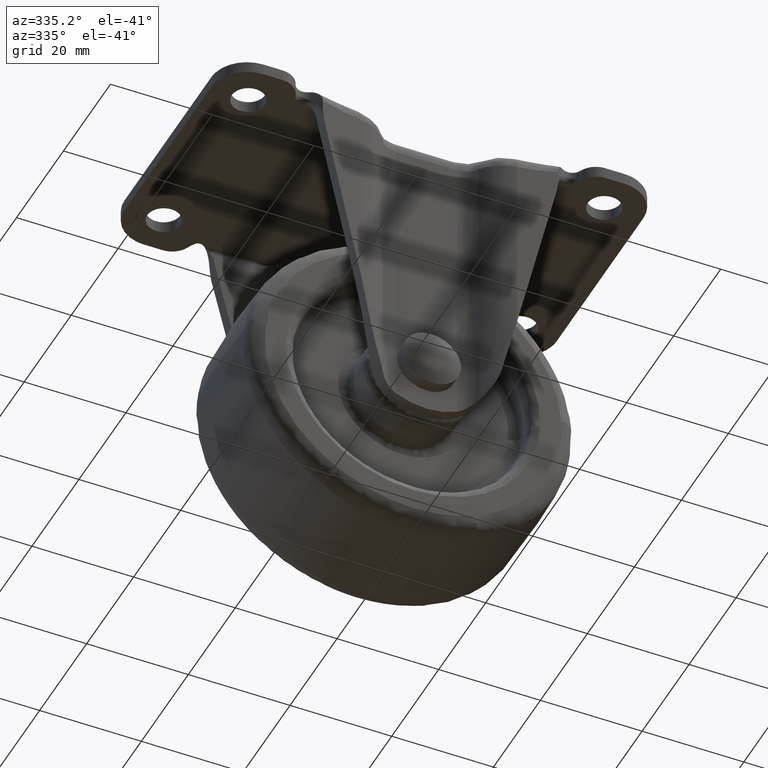
[diagram: clean part render]
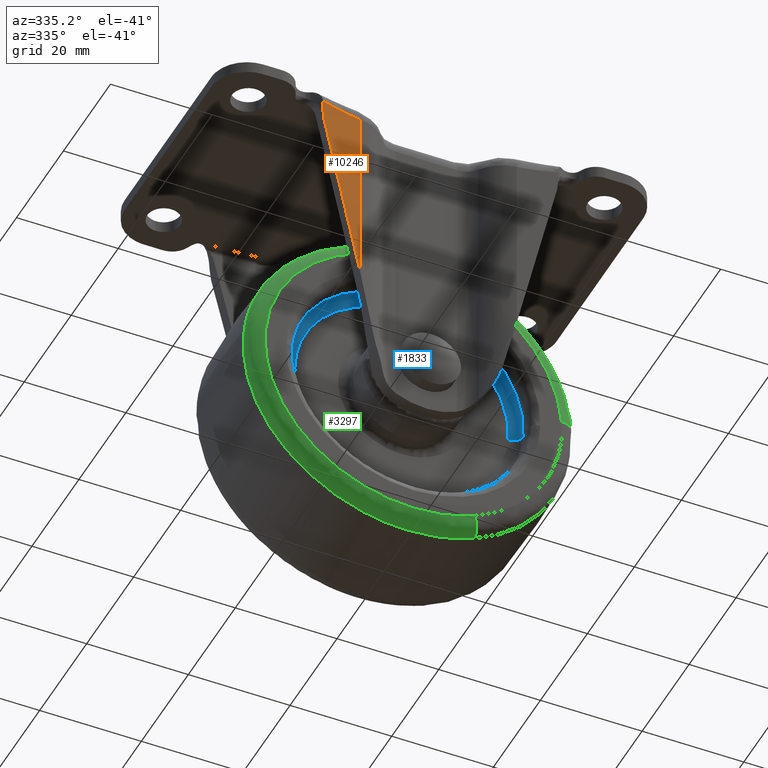
[diagram: same view with three faces highlighted in distinct colors, each labeled with its STEP entity id]
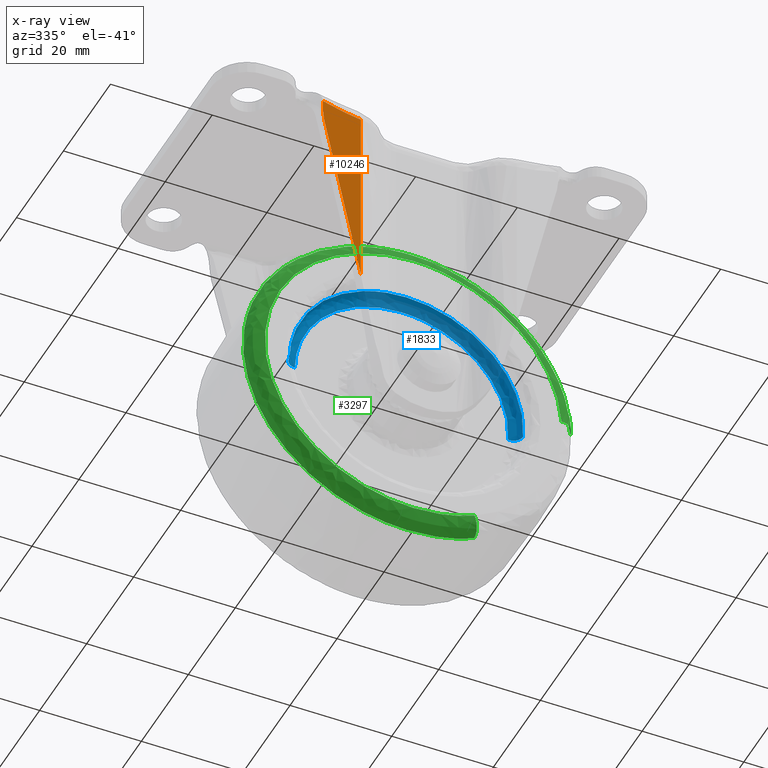
[diagram: x-ray of the same camera — body ghosted, the three highlighted faces saturated]
A machine part, auxiliary view with three faces highlighted in distinct colors.
The next image is the same camera in x-ray (body ghosted, the three faces saturated) — at least one of them is partly hidden behind the body in this view.
Their STEP definitions:

[orange] entity #10246 — the highlighted face is a freeform B-spline surface patch.
#5128=CARTESIAN_POINT('',(-23.138794737937999,-24.081641636655949,-5.210983538421420));
#5129=VERTEX_POINT('',#5128);
#5130=CARTESIAN_POINT('',(-22.904490324859250,-24.061109985007100,-7.231457272741491));
#5131=VERTEX_POINT('',#5130);
#5132=CARTESIAN_POINT('',(-23.138794737937999,-24.081641636655949,-5.210983538421420));
#5133=CARTESIAN_POINT('',(-23.138794762368459,-24.081641900379740,-5.381638002651290));
#5134=CARTESIAN_POINT('',(-23.132856361118879,-24.081119695940501,-5.551598572091938));
#5135=CARTESIAN_POINT('',(-23.111457753193839,-24.079248153138192,-5.890406973806297));
#5136=CARTESIAN_POINT('',(-23.095965649797900,-24.077892874179611,-6.059251112953811));
#5137=CARTESIAN_POINT('',(-23.036447446776471,-24.072682795279089,-6.564259494910630));
#5138=CARTESIAN_POINT('',(-22.979731993665631,-24.067715260781458,-6.898940904763734));
#5139=CARTESIAN_POINT('',(-22.904490324859250,-24.061109985007100,-7.231457272741491));
#5140=B_SPLINE_CURVE_WITH_KNOTS('',3,(#5132,#5133,#5134,#5135,#5136,#5137,#5138,#5139),.UNSPECIFIED.,.F.,.U.,(4,2,2,4),(0.0,0.250000000000000,0.500000000000001,1.0),.UNSPECIFIED.);
#5141=EDGE_CURVE('',#5129,#5131,#5140,.T.);
#7037=CARTESIAN_POINT('',(-15.345842926062300,-23.356906576350550,-4.0));
#7038=VERTEX_POINT('',#7037);
#7070=CARTESIAN_POINT('',(-23.138794737937999,-24.081641636655949,-3.005010894210015));
#7071=VERTEX_POINT('',#7070);
#7092=CARTESIAN_POINT('',(-15.345842926062300,-23.356906576350550,-4.0));
#7093=CARTESIAN_POINT('',(-15.542196803580159,-23.376208452985750,-3.998252340827902));
#7094=CARTESIAN_POINT('',(-15.943074410354541,-23.415614057081442,-3.994684307332886));
#7095=CARTESIAN_POINT('',(-16.556344533325159,-23.475234599900080,-3.967219498528907));
#7096=CARTESIAN_POINT('',(-17.193662023919192,-23.536665349010089,-3.923806713344016));
#7097=CARTESIAN_POINT('',(-17.855041105641892,-23.599791789445138,-3.862664077885023));
#7098=CARTESIAN_POINT('',(-18.540486307187770,-23.664567283484342,-3.784285565886540));
#7099=CARTESIAN_POINT('',(-19.559596059871719,-23.759831416503719,-3.646822113808097));
#7100=CARTESIAN_POINT('',(-21.096179391881549,-23.901167338269971,-3.390431380938306));
#7101=CARTESIAN_POINT('',(-22.392631055198461,-24.015714702647589,-3.145804299264311));
#7102=CARTESIAN_POINT('',(-23.138794737937999,-24.081641636655949,-3.005010894210015));
#7103=B_SPLINE_CURVE_WITH_KNOTS('',3,(#7092,#7093,#7094,#7095,#7096,#7097,#7098,#7099,#7100,#7101,#7102),.UNSPECIFIED.,.F.,.U.,(4,1,1,1,1,1,1,1,4),(0.0,0.074907408361414,0.152931501934087,0.234127027377918,0.318542561195124,0.406221328122165,0.497201901939905,0.710618073046811,1.0),.UNSPECIFIED.);
#7104=EDGE_CURVE('',#7038,#7071,#7103,.T.);
#9689=CARTESIAN_POINT('',(-15.345842926062300,-23.356906576350600,-40.635452526867297));
#9690=VERTEX_POINT('',#9689);
#9691=CARTESIAN_POINT('',(-22.904490324859250,-24.061109985007100,-7.231457272741491));
#9692=CARTESIAN_POINT('',(-19.123290914545269,-23.729141762832246,-23.941744245134736));
#9693=CARTESIAN_POINT('',(-15.345842926062300,-23.356906576350600,-40.635452526867297));
#9701=(BOUNDED_CURVE()B_SPLINE_CURVE(2,(#9691,#9692,#9693),.UNSPECIFIED.,.F.,.U.)CURVE()GEOMETRIC_REPRESENTATION_ITEM()QUASI_UNIFORM_CURVE()RATIONAL_B_SPLINE_CURVE((1.0,0.999985810822682,1.0))REPRESENTATION_ITEM(''));
#9702=EDGE_CURVE('',#5131,#9690,#9701,.T.);
#10217=CARTESIAN_POINT('',(-14.956826208241139,-23.318465233696791,-41.576213567683730));
#10218=CARTESIAN_POINT('',(-14.956826208241139,-23.318465233696791,-2.040730827373170));
#10219=CARTESIAN_POINT('',(-19.240145032622376,-23.742921870715968,-41.576213567683730));
#10220=CARTESIAN_POINT('',(-19.240145032622376,-23.742921870715968,-2.040730827373170));
#10221=CARTESIAN_POINT('',(-23.528279284066073,-24.115598982440932,-41.576213567683730));
#10222=CARTESIAN_POINT('',(-23.528279284066073,-24.115598982440932,-2.040730827373170));
#10230=(BOUNDED_SURFACE()B_SPLINE_SURFACE(1,2,((#10217,#10219,#10221),(#10218,#10220,#10222)),.UNSPECIFIED.,.F.,.F.,.U.)B_SPLINE_SURFACE_WITH_KNOTS((2,2),(3,3),(0.0,39.535482740310570),(22.884234614562988,31.493885807800289),.UNSPECIFIED.)GEOMETRIC_REPRESENTATION_ITEM()RATIONAL_B_SPLINE_SURFACE(((0.999277284091639,0.999189796837341,0.999138777286857),(0.999277284091639,0.999189796837341,0.999138777286857)))REPRESENTATION_ITEM('')SURFACE());
#10231=CARTESIAN_POINT('',(-23.138794737937999,-24.081641636655949,-5.210983538421420));
#10232=CARTESIAN_POINT('',(-23.138794737937999,-24.081641636655949,-3.005010894210015));
#10233=QUASI_UNIFORM_CURVE('',1,(#10231,#10232),.UNSPECIFIED.,.F.,.U.);
#10234=EDGE_CURVE('',#5129,#7071,#10233,.T.);
#10235=ORIENTED_EDGE('',*,*,#10234,.F.);
#10236=ORIENTED_EDGE('',*,*,#5141,.T.);
#10237=ORIENTED_EDGE('',*,*,#9702,.T.);
#10238=CARTESIAN_POINT('',(-15.345842926062300,-23.356906576350600,-40.635452526867297));
#10239=CARTESIAN_POINT('',(-15.345842926062300,-23.356906576350550,-4.0));
#10240=QUASI_UNIFORM_CURVE('',1,(#10238,#10239),.UNSPECIFIED.,.F.,.U.);
#10241=EDGE_CURVE('',#9690,#7038,#10240,.T.);
#10242=ORIENTED_EDGE('',*,*,#10241,.T.);
#10243=ORIENTED_EDGE('',*,*,#7104,.T.);
#10244=EDGE_LOOP('',(#10235,#10236,#10237,#10242,#10243));
#10245=FACE_OUTER_BOUND('',#10244,.T.);
#10246=ADVANCED_FACE('',(#10245),#10230,.T.);

[blue] entity #1833 — the highlighted face is a freeform B-spline surface patch.
#136=CARTESIAN_POINT('',(16.957380065616729,-9.499999999999998,-36.961426664258383));
#137=VERTEX_POINT('',#136);
#143=CARTESIAN_POINT('',(22.944010498322658,-9.499999999206022,-54.103864786339393));
#144=VERTEX_POINT('',#143);
#145=CARTESIAN_POINT('',(22.944010498322658,-9.499999999206022,-54.103864786339379));
#146=CARTESIAN_POINT('',(23.0,-9.500000000000000,-53.302909665222977));
#147=CARTESIAN_POINT('',(23.0,-9.500000000000000,-52.500000000000000));
#148=CARTESIAN_POINT('',(23.000000000000004,-9.500000000000000,-43.555790291176045));
#149=CARTESIAN_POINT('',(16.957380065616789,-9.499999999999998,-36.961426664258319));
#157=(BOUNDED_CURVE()B_SPLINE_CURVE(2,(#145,#146,#147,#148,#149),.UNSPECIFIED.,.F.,.U.)B_SPLINE_CURVE_WITH_KNOTS((3,2,3),(0.237833686533572,0.250000000000000,0.368415196269893),.UNSPECIFIED.)CURVE()GEOMETRIC_REPRESENTATION_ITEM()RATIONAL_B_SPLINE_CURVE((0.972879876383762,0.985746277150898,1.0,0.861267968032337,0.853959782419649))REPRESENTATION_ITEM(''));
#158=EDGE_CURVE('',#144,#137,#157,.T.);
#175=CARTESIAN_POINT('',(-22.998184016686359,-9.499999999209809,-52.210981082571138));
#176=VERTEX_POINT('',#175);
#192=CARTESIAN_POINT('',(-8.545393461454655,-9.499999999942716,-31.146399587222820));
#193=VERTEX_POINT('',#192);
#194=CARTESIAN_POINT('',(-8.545393461454657,-9.499999999942716,-31.146399587222827));
#195=CARTESIAN_POINT('',(-22.805179195135924,-9.499999999744167,-36.852953864503675));
#196=CARTESIAN_POINT('',(-22.998184016686363,-9.499999999209809,-52.210981082571145));
#204=(BOUNDED_CURVE()B_SPLINE_CURVE(2,(#194,#195,#196),.UNSPECIFIED.,.F.,.U.)B_SPLINE_CURVE_WITH_KNOTS((3,3),(0.563083103218634,0.747784295920019),.UNSPECIFIED.)CURVE()GEOMETRIC_REPRESENTATION_ITEM()RATIONAL_B_SPLINE_CURVE((0.889485081796512,0.782299053975213,0.994854295640079))REPRESENTATION_ITEM(''));
#205=EDGE_CURVE('',#193,#176,#204,.T.);
#245=CARTESIAN_POINT('',(0.0,-9.500000000000000,-29.500000000000000));
#246=VERTEX_POINT('',#245);
#247=CARTESIAN_POINT('',(0.0,-9.500000000000000,-29.500000000000000));
#248=CARTESIAN_POINT('',(-4.431298649586108,-9.500000000000000,-29.500000000000000));
#249=CARTESIAN_POINT('',(-8.545393461454657,-9.499999999942716,-31.146399587222827));
#257=(BOUNDED_CURVE()B_SPLINE_CURVE(2,(#247,#248,#249),.UNSPECIFIED.,.F.,.U.)B_SPLINE_CURVE_WITH_KNOTS((3,3),(0.500000000000000,0.563083103218634),.UNSPECIFIED.)CURVE()GEOMETRIC_REPRESENTATION_ITEM()RATIONAL_B_SPLINE_CURVE((1.0,0.926093547382212,0.889485081796512))REPRESENTATION_ITEM(''));
#258=EDGE_CURVE('',#246,#193,#257,.T.);
#260=CARTESIAN_POINT('',(16.957380065616789,-9.499999999999998,-36.961426664258319));
#261=CARTESIAN_POINT('',(10.120243375679701,-9.500000000000000,-29.500000000000004));
#262=CARTESIAN_POINT('',(0.0,-9.500000000000000,-29.500000000000000));
#270=(BOUNDED_CURVE()B_SPLINE_CURVE(2,(#260,#261,#262),.UNSPECIFIED.,.F.,.U.)B_SPLINE_CURVE_WITH_KNOTS((3,3),(0.368415196269893,0.500000000000000),.UNSPECIFIED.)CURVE()GEOMETRIC_REPRESENTATION_ITEM()RATIONAL_B_SPLINE_CURVE((0.853959782419649,0.845838813154210,1.0))REPRESENTATION_ITEM(''));
#271=EDGE_CURVE('',#137,#246,#270,.T.);
#1738=CARTESIAN_POINT('',(20.810141914954770,-7.504841384294429,-53.954698921813808));
#1739=CARTESIAN_POINT('',(20.851774732941294,-7.504841384294426,-53.359122175569517));
#1740=CARTESIAN_POINT('',(20.859277037114627,-7.504841384294428,-52.762139204595869));
#1741=CARTESIAN_POINT('',(21.121416241710506,-7.504841384294427,-31.902862167481256));
#1742=CARTESIAN_POINT('',(0.262139204595882,-7.504841384294428,-31.640722962885370));
#1743=CARTESIAN_POINT('',(-20.597137832518754,-7.504841384294427,-31.378583758289484));
#1744=CARTESIAN_POINT('',(-20.859277037114627,-7.504841384294428,-52.237860795404103));
#1745=CARTESIAN_POINT('',(23.098707658587177,-7.344923786171122,-54.114677365659475));
#1746=CARTESIAN_POINT('',(23.144918986486989,-7.344923786171118,-53.453602914270789));
#1747=CARTESIAN_POINT('',(23.153246345885780,-7.344923786171120,-52.790967590589254));
#1748=CARTESIAN_POINT('',(23.444213936475037,-7.344923786171121,-29.637721244703485));
#1749=CARTESIAN_POINT('',(0.290967590589255,-7.344923786171120,-29.346753654114224));
#1750=CARTESIAN_POINT('',(-22.862278755296526,-7.344923786171121,-29.055786063524977));
#1751=CARTESIAN_POINT('',(-23.153246345885780,-7.344923786171120,-52.209032409410739));
#1752=CARTESIAN_POINT('',(22.939181093657627,-9.639074353157067,-54.103525922149295));
#1753=CARTESIAN_POINT('',(22.985073272343136,-9.639074353157067,-53.447017048105955));
#1754=CARTESIAN_POINT('',(22.993343120514048,-9.639074353157069,-52.788958081619370));
#1755=CARTESIAN_POINT('',(23.282301202133429,-9.639074353157071,-29.795614961105322));
#1756=CARTESIAN_POINT('',(0.288958081619377,-9.639074353157069,-29.506656879485941));
#1757=CARTESIAN_POINT('',(-22.704385038894671,-9.639074353157071,-29.217698797866564));
#1758=CARTESIAN_POINT('',(-22.993343120514048,-9.639074353157069,-52.211041918380623));
#1766=(BOUNDED_SURFACE()B_SPLINE_SURFACE(2,2,((#1738,#1745,#1752),(#1739,#1746,#1753),(#1740,#1747,#1754),(#1741,#1748,#1755),(#1742,#1749,#1756),(#1743,#1750,#1757),(#1744,#1751,#1758)),.UNSPECIFIED.,.F.,.F.,.U.)B_SPLINE_SURFACE_WITH_KNOTS((3,2,2,3),(3,3),(0.0,1.523983604438608,39.623610050039019,77.723236495639441),(0.0,3.644749988462821),.UNSPECIFIED.)GEOMETRIC_REPRESENTATION_ITEM()RATIONAL_B_SPLINE_SURFACE(((0.889999636026618,0.584039584547721,0.889999327348188),(0.899813210756328,0.590479492920780,0.899812898674257),(0.910480138925770,0.597479392745790,0.910479823144090),(0.643806680370082,0.422481730229768,0.643806457078715),(0.910480138925770,0.597479392745790,0.910479823144090),(0.643806680370082,0.422481730229768,0.643806457078715),(0.910480138925770,0.597479392745790,0.910479823144090)))REPRESENTATION_ITEM('')SURFACE());
#1767=ORIENTED_EDGE('',*,*,#271,.T.);
#1768=ORIENTED_EDGE('',*,*,#258,.T.);
#1769=ORIENTED_EDGE('',*,*,#205,.T.);
#1770=CARTESIAN_POINT('',(-20.998341944833260,-7.500000000000000,-52.236113161485861));
#1771=VERTEX_POINT('',#1770);
#1772=CARTESIAN_POINT('',(-20.998341944833250,-7.500000000000000,-52.236113161485861));
#1773=CARTESIAN_POINT('',(-22.998184015107501,-7.500000033127848,-52.210981082702766));
#1774=CARTESIAN_POINT('',(-22.998184016686359,-9.499999999209809,-52.210981082571124));
#1782=(BOUNDED_CURVE()B_SPLINE_CURVE(2,(#1772,#1773,#1774),.UNSPECIFIED.,.F.,.U.)B_SPLINE_CURVE_WITH_KNOTS((3,3),(-1.725134626295590,-0.274865357528524),.UNSPECIFIED.)CURVE()GEOMETRIC_REPRESENTATION_ITEM()RATIONAL_B_SPLINE_CURVE((0.883342143592448,0.624617227302449,0.883342149363934))REPRESENTATION_ITEM(''));
#1783=EDGE_CURVE('',#1771,#176,#1782,.T.);
#1784=ORIENTED_EDGE('',*,*,#1783,.F.);
#1785=CARTESIAN_POINT('',(0.0,-7.500000000000000,-31.500000000000000));
#1786=VERTEX_POINT('',#1785);
#1787=CARTESIAN_POINT('',(0.0,-7.500000000000000,-31.500000000000000));
#1788=CARTESIAN_POINT('',(-20.737750526561165,-7.500000000000000,-31.500000000000000));
#1789=CARTESIAN_POINT('',(-20.998341944833253,-7.500000000000000,-52.236113161485861));
#1797=(BOUNDED_CURVE()B_SPLINE_CURVE(2,(#1787,#1788,#1789),.UNSPECIFIED.,.F.,.U.)B_SPLINE_CURVE_WITH_KNOTS((3,3),(0.500000000000000,0.747784295909073),.UNSPECIFIED.)CURVE()GEOMETRIC_REPRESENTATION_ITEM()RATIONAL_B_SPLINE_CURVE((1.0,0.709702639999067,0.994854295614884))REPRESENTATION_ITEM(''));
#1798=EDGE_CURVE('',#1786,#1771,#1797,.T.);
#1799=ORIENTED_EDGE('',*,*,#1798,.F.);
#1800=CARTESIAN_POINT('',(20.948879162886289,-7.500000000000000,-53.964398284393617));
#1801=VERTEX_POINT('',#1800);
#1802=CARTESIAN_POINT('',(20.948879162886286,-7.500000000000001,-53.964398284393624));
#1803=CARTESIAN_POINT('',(21.0,-7.500000000000001,-53.233091433822317));
#1804=CARTESIAN_POINT('',(21.0,-7.500000000000000,-52.500000000000000));
#1805=CARTESIAN_POINT('',(21.000000000000007,-7.500000000000000,-31.500000000000007));
#1806=CARTESIAN_POINT('',(0.0,-7.500000000000000,-31.500000000000000));
#1814=(BOUNDED_CURVE()B_SPLINE_CURVE(2,(#1802,#1803,#1804,#1805,#1806),.UNSPECIFIED.,.F.,.U.)B_SPLINE_CURVE_WITH_KNOTS((3,2,3),(0.237833686527718,0.250000000000000,0.500000000000000),.UNSPECIFIED.)CURVE()GEOMETRIC_REPRESENTATION_ITEM()RATIONAL_B_SPLINE_CURVE((0.972879876371379,0.985746277144039,1.0,0.707106781186547,1.0))REPRESENTATION_ITEM(''));
#1815=EDGE_CURVE('',#1801,#1786,#1814,.T.);
#1816=ORIENTED_EDGE('',*,*,#1815,.F.);
#1817=CARTESIAN_POINT('',(20.948879162886289,-7.500000000000001,-53.964398284393624));
#1818=CARTESIAN_POINT('',(22.944010496745847,-7.500000024597449,-54.103864786124426));
#1819=CARTESIAN_POINT('',(22.944010498322655,-9.499999999206022,-54.103864786339386));
#1827=(BOUNDED_CURVE()B_SPLINE_CURVE(2,(#1817,#1818,#1819),.UNSPECIFIED.,.F.,.U.)B_SPLINE_CURVE_WITH_KNOTS((3,3),(-1.725134630669531,-0.274865357532406),.UNSPECIFIED.)CURVE()GEOMETRIC_REPRESENTATION_ITEM()RATIONAL_B_SPLINE_CURVE((0.863472070973918,0.610566962202640,0.863472075088727))REPRESENTATION_ITEM(''));
#1828=EDGE_CURVE('',#1801,#144,#1827,.T.);
#1829=ORIENTED_EDGE('',*,*,#1828,.T.);
#1830=ORIENTED_EDGE('',*,*,#158,.T.);
#1831=EDGE_LOOP('',(#1767,#1768,#1769,#1784,#1799,#1816,#1829,#1830));
#1832=FACE_OUTER_BOUND('',#1831,.T.);
#1833=ADVANCED_FACE('',(#1832),#1766,.F.);

[green] entity #3297 — the highlighted face is a freeform B-spline surface patch.
#3086=CARTESIAN_POINT('',(12.008300609346319,-12.500000000000000,-79.108547519359405));
#3087=VERTEX_POINT('',#3086);
#3088=CARTESIAN_POINT('',(29.135100875760529,-12.500000000000000,-50.666974822294819));
#3089=VERTEX_POINT('',#3088);
#3105=CARTESIAN_POINT('',(13.239758704388590,-9.693877657878014,-81.837269286090475));
#3106=VERTEX_POINT('',#3105);
#3107=CARTESIAN_POINT('',(13.239758704388581,-9.693877657878014,-81.837269286090475));
#3108=CARTESIAN_POINT('',(13.165005616156312,-12.499999987945635,-81.671627938065811));
#3109=CARTESIAN_POINT('',(12.008300609346321,-12.500000000000000,-79.108547519359405));
#3117=(BOUNDED_CURVE()B_SPLINE_CURVE(2,(#3107,#3108,#3109),.UNSPECIFIED.,.F.,.U.)B_SPLINE_CURVE_WITH_KNOTS((3,3),(-1.725950056856030,-0.285348511606128),.UNSPECIFIED.)CURVE()GEOMETRIC_REPRESENTATION_ITEM()RATIONAL_B_SPLINE_CURVE((0.795329728826368,0.579041502434596,0.791963454093875))REPRESENTATION_ITEM(''));
#3118=EDGE_CURVE('',#3106,#3087,#3117,.T.);
#3120=CARTESIAN_POINT('',(32.122922095647532,-9.693878829572078,-50.478997045119158));
#3121=VERTEX_POINT('',#3120);
#3137=CARTESIAN_POINT('',(32.122922095647532,-9.693878829572078,-50.478997045119165));
#3138=CARTESIAN_POINT('',(31.941551598980865,-12.499999996666034,-50.490407909584846));
#3139=CARTESIAN_POINT('',(29.135100875760532,-12.499999999999998,-50.666974822294819));
#3147=(BOUNDED_CURVE()B_SPLINE_CURVE(2,(#3137,#3138,#3139),.UNSPECIFIED.,.F.,.U.)B_SPLINE_CURVE_WITH_KNOTS((3,3),(-1.725949644456495,-0.285348508346741),.UNSPECIFIED.)CURVE()GEOMETRIC_REPRESENTATION_ITEM()RATIONAL_B_SPLINE_CURVE((0.890474534982845,0.648312049772025,0.886705694014307))REPRESENTATION_ITEM(''));
#3148=EDGE_CURVE('',#3121,#3089,#3147,.T.);
#3153=CARTESIAN_POINT('',(32.129171222314390,-9.492305585209238,-50.478603883412568));
#3154=CARTESIAN_POINT('',(30.107775105726944,-9.492305585209236,-18.349432661098163));
#3155=CARTESIAN_POINT('',(-2.021396116587446,-9.492305585209238,-20.370828777685613));
#3156=CARTESIAN_POINT('',(-34.150567338901837,-9.492305585209236,-22.392224894273056));
#3157=CARTESIAN_POINT('',(-32.129171222314390,-9.492305585209238,-54.521396116587454));
#3158=CARTESIAN_POINT('',(-30.107775105726958,-9.492305585209236,-86.650567338901837));
#3159=CARTESIAN_POINT('',(2.021396116587435,-9.492305585209238,-84.629171222314412));
#3160=CARTESIAN_POINT('',(7.886156963092948,-9.492305585209236,-84.260191745134264));
#3161=CARTESIAN_POINT('',(13.242334321645249,-9.492305585209236,-81.842976457863415));
#3162=CARTESIAN_POINT('',(32.137408536917810,-12.710317978902461,-50.478085635505224));
#3163=CARTESIAN_POINT('',(30.115494172423013,-12.710317978902463,-18.340677098587413));
#3164=CARTESIAN_POINT('',(-2.021914364494783,-12.710317978902461,-20.362591463082200));
#3165=CARTESIAN_POINT('',(-34.159322901412594,-12.710317978902463,-22.384505827576980));
#3166=CARTESIAN_POINT('',(-32.137408536917810,-12.710317978902461,-54.521914364494783));
#3167=CARTESIAN_POINT('',(-30.115494172423031,-12.710317978902463,-86.659322901412594));
#3168=CARTESIAN_POINT('',(2.021914364494772,-12.710317978902461,-84.637408536917803));
#3169=CARTESIAN_POINT('',(7.888178825265098,-12.710317978902459,-84.268334460346537));
#3170=CARTESIAN_POINT('',(13.245729406851030,-12.710317978902459,-81.850499444585097));
#3171=CARTESIAN_POINT('',(28.933056474022937,-12.493161618147337,-50.679686379305785));
#3172=CARTESIAN_POINT('',(27.112742853328722,-12.493161618147338,-21.746629905282852));
#3173=CARTESIAN_POINT('',(-1.820313620694206,-12.493161618147337,-23.566943525977059));
#3174=CARTESIAN_POINT('',(-30.753370094717141,-12.493161618147338,-25.387257146671271));
#3175=CARTESIAN_POINT('',(-28.933056474022937,-12.493161618147337,-54.320313620694215));
#3176=CARTESIAN_POINT('',(-27.112742853328736,-12.493161618147338,-83.253370094717127));
#3177=CARTESIAN_POINT('',(1.820313620694196,-12.493161618147337,-81.433056474022948));
#3178=CARTESIAN_POINT('',(7.101665436601993,-12.493161618147349,-81.100781981875642));
#3179=CARTESIAN_POINT('',(11.925026142907615,-12.493161618147342,-78.924024108709375));
#3187=(BOUNDED_SURFACE()B_SPLINE_SURFACE(2,2,((#3153,#3162,#3171),(#3154,#3163,#3172),(#3155,#3164,#3173),(#3156,#3165,#3174),(#3157,#3166,#3175),(#3158,#3167,#3176),(#3159,#3168,#3177),(#3160,#3169,#3178),(#3161,#3170,#3179)),.UNSPECIFIED.,.F.,.F.,.U.)B_SPLINE_SURFACE_WITH_KNOTS((3,2,2,2,3),(3,3),(0.0,53.338605426122911,106.677210852245810,160.015816278368700,172.817081580638190),(0.0,5.218754536588389),.UNSPECIFIED.)GEOMETRIC_REPRESENTATION_ITEM()RATIONAL_B_SPLINE_SURFACE(((0.915865810649645,0.623108907825506,0.911720698794484),(0.647614925367278,0.440604534141159,0.644683888665718),(0.915865810649645,0.623108907825506,0.911720698794484),(0.647614925367278,0.440604534141159,0.644683888665718),(0.915865810649645,0.623108907825506,0.911720698794484),(0.647614925367278,0.440604534141159,0.644683888665718),(0.915865810649645,0.623108907825506,0.911720698794484),(0.851485598181877,0.579307858141263,0.847631864363580),(0.818007887698638,0.556531312305456,0.814305670459510)))REPRESENTATION_ITEM('')SURFACE());
#3188=CARTESIAN_POINT('',(0.0,-12.500000000000000,-81.692705999999887));
#3189=VERTEX_POINT('',#3188);
#3190=CARTESIAN_POINT('',(0.0,-12.500000000000000,-81.692705999999887));
#3191=CARTESIAN_POINT('',(6.282202765045111,-12.500000000000004,-81.692705999999887));
#3192=CARTESIAN_POINT('',(12.008300609346325,-12.499999999999996,-79.108547519359405));
#3200=(BOUNDED_CURVE()B_SPLINE_CURVE(2,(#3190,#3191,#3192),.UNSPECIFIED.,.F.,.U.)B_SPLINE_CURVE_WITH_KNOTS((3,3),(0.0,0.069856974356780),.UNSPECIFIED.)CURVE()GEOMETRIC_REPRESENTATION_ITEM()RATIONAL_B_SPLINE_CURVE((1.0,0.918157463696296,0.882053103071485))REPRESENTATION_ITEM(''));
#3201=EDGE_CURVE('',#3189,#3087,#3200,.T.);
#3202=ORIENTED_EDGE('',*,*,#3201,.F.);
#3203=CARTESIAN_POINT('',(0.0,-12.500000000000000,-23.307294000000098));
#3204=VERTEX_POINT('',#3203);
#3205=CARTESIAN_POINT('',(0.0,-12.500000000000000,-23.307294000000098));
#3206=CARTESIAN_POINT('',(-29.192705999999898,-12.500000000000000,-23.307294000000105));
#3207=CARTESIAN_POINT('',(-29.192705999999902,-12.500000000000000,-52.500000000000000));
#3208=CARTESIAN_POINT('',(-29.192705999999898,-12.500000000000000,-81.692705999999873));
#3209=CARTESIAN_POINT('',(0.0,-12.500000000000000,-81.692705999999887));
#3217=(BOUNDED_CURVE()B_SPLINE_CURVE(2,(#3205,#3206,#3207,#3208,#3209),.UNSPECIFIED.,.F.,.U.)B_SPLINE_CURVE_WITH_KNOTS((3,2,3),(0.500000000000000,0.750000000000000,1.0),.UNSPECIFIED.)CURVE()GEOMETRIC_REPRESENTATION_ITEM()RATIONAL_B_SPLINE_CURVE((1.0,0.707106781186548,1.0,0.707106781186548,1.0))REPRESENTATION_ITEM(''));
#3218=EDGE_CURVE('',#3204,#3189,#3217,.T.);
#3219=ORIENTED_EDGE('',*,*,#3218,.F.);
#3220=CARTESIAN_POINT('',(29.135100875760525,-12.500000000000000,-50.666974822294819));
#3221=CARTESIAN_POINT('',(27.413775646628824,-12.499999999999998,-23.307294000000105));
#3222=CARTESIAN_POINT('',(0.0,-12.500000000000000,-23.307294000000098));
#3230=(BOUNDED_CURVE()B_SPLINE_CURVE(2,(#3220,#3221,#3222),.UNSPECIFIED.,.F.,.U.)B_SPLINE_CURVE_WITH_KNOTS((3,3),(0.260968089267949,0.500000000000000),.UNSPECIFIED.)CURVE()GEOMETRIC_REPRESENTATION_ITEM()RATIONAL_B_SPLINE_CURVE((0.975427680436251,0.719956697066239,1.0))REPRESENTATION_ITEM(''));
#3231=EDGE_CURVE('',#3089,#3204,#3230,.T.);
#3232=ORIENTED_EDGE('',*,*,#3231,.F.);
#3233=ORIENTED_EDGE('',*,*,#3148,.F.);
#3234=CARTESIAN_POINT('',(0.0,-9.693879960396300,-20.313565439905659));
#3235=VERTEX_POINT('',#3234);
#3236=CARTESIAN_POINT('',(32.122922095647525,-9.693878829572078,-50.478997045119158));
#3237=CARTESIAN_POINT('',(30.225073959961335,-9.693879960396298,-20.313565439905659));
#3238=CARTESIAN_POINT('',(0.0,-9.693879960396300,-20.313565439905659));
#3246=(BOUNDED_CURVE()B_SPLINE_CURVE(2,(#3236,#3237,#3238),.UNSPECIFIED.,.F.,.U.)B_SPLINE_CURVE_WITH_KNOTS((3,3),(0.260968089703160,0.500000000000000),.UNSPECIFIED.)CURVE()GEOMETRIC_REPRESENTATION_ITEM()RATIONAL_B_SPLINE_CURVE((0.975427679505967,0.719956697576120,1.0))REPRESENTATION_ITEM(''));
#3247=EDGE_CURVE('',#3121,#3235,#3246,.T.);
#3248=ORIENTED_EDGE('',*,*,#3247,.T.);
#3249=CARTESIAN_POINT('',(-31.971164508822291,-9.693890509256701,-48.783662332049083));
#3250=VERTEX_POINT('',#3249);
#3251=CARTESIAN_POINT('',(0.0,-9.693879960396300,-20.313565439905659));
#3252=CARTESIAN_POINT('',(-28.661792391478532,-9.693885234826499,-20.313565410338082));
#3253=CARTESIAN_POINT('',(-31.971164508822291,-9.693890509256701,-48.783662332049090));
#3261=(BOUNDED_CURVE()B_SPLINE_CURVE(2,(#3251,#3252,#3253),.UNSPECIFIED.,.F.,.U.)B_SPLINE_CURVE_WITH_KNOTS((3,3),(0.500000000000000,0.730000233403653),.UNSPECIFIED.)CURVE()GEOMETRIC_REPRESENTATION_ITEM()RATIONAL_B_SPLINE_CURVE((1.0,0.730537965242235,0.956886577586143))REPRESENTATION_ITEM(''));
#3262=EDGE_CURVE('',#3235,#3250,#3261,.T.);
#3263=ORIENTED_EDGE('',*,*,#3262,.T.);
#3264=CARTESIAN_POINT('',(0.0,-9.693877551020471,-84.686434716128545));
#3265=VERTEX_POINT('',#3264);
#3266=CARTESIAN_POINT('',(-31.971164508822291,-9.693890509256701,-48.783662332049090));
#3267=CARTESIAN_POINT('',(-32.186433904017974,-9.693890175051314,-50.635596458006972));
#3268=CARTESIAN_POINT('',(-32.186433928161478,-9.693889799747510,-52.500000091593513));
#3269=CARTESIAN_POINT('',(-32.186434344966578,-9.693883320629395,-84.686434759272515));
#3270=CARTESIAN_POINT('',(0.0,-9.693877551020471,-84.686434716128545));
#3278=(BOUNDED_CURVE()B_SPLINE_CURVE(2,(#3266,#3267,#3268,#3269,#3270),.UNSPECIFIED.,.F.,.U.)B_SPLINE_CURVE_WITH_KNOTS((3,2,3),(0.730000233403653,0.750000000000000,1.0),.UNSPECIFIED.)CURVE()GEOMETRIC_REPRESENTATION_ITEM()RATIONAL_B_SPLINE_CURVE((0.956886577586143,0.976568815944312,1.0,0.707106781186547,1.0))REPRESENTATION_ITEM(''));
#3279=EDGE_CURVE('',#3250,#3265,#3278,.T.);
#3280=ORIENTED_EDGE('',*,*,#3279,.T.);
#3281=CARTESIAN_POINT('',(0.0,-9.693877551020471,-84.686434716128545));
#3282=CARTESIAN_POINT('',(6.926446256787460,-9.693877551020471,-84.686434716128559));
#3283=CARTESIAN_POINT('',(13.239758704388581,-9.693877657878014,-81.837269286090489));
#3291=(BOUNDED_CURVE()B_SPLINE_CURVE(2,(#3281,#3282,#3283),.UNSPECIFIED.,.F.,.U.)B_SPLINE_CURVE_WITH_KNOTS((3,3),(0.0,0.069856974365849),.UNSPECIFIED.)CURVE()GEOMETRIC_REPRESENTATION_ITEM()RATIONAL_B_SPLINE_CURVE((1.0,0.918157463685671,0.882053103062111))REPRESENTATION_ITEM(''));
#3292=EDGE_CURVE('',#3265,#3106,#3291,.T.);
#3293=ORIENTED_EDGE('',*,*,#3292,.T.);
#3294=ORIENTED_EDGE('',*,*,#3118,.T.);
#3295=EDGE_LOOP('',(#3202,#3219,#3232,#3233,#3248,#3263,#3280,#3293,#3294));
#3296=FACE_OUTER_BOUND('',#3295,.T.);
#3297=ADVANCED_FACE('',(#3296),#3187,.T.);